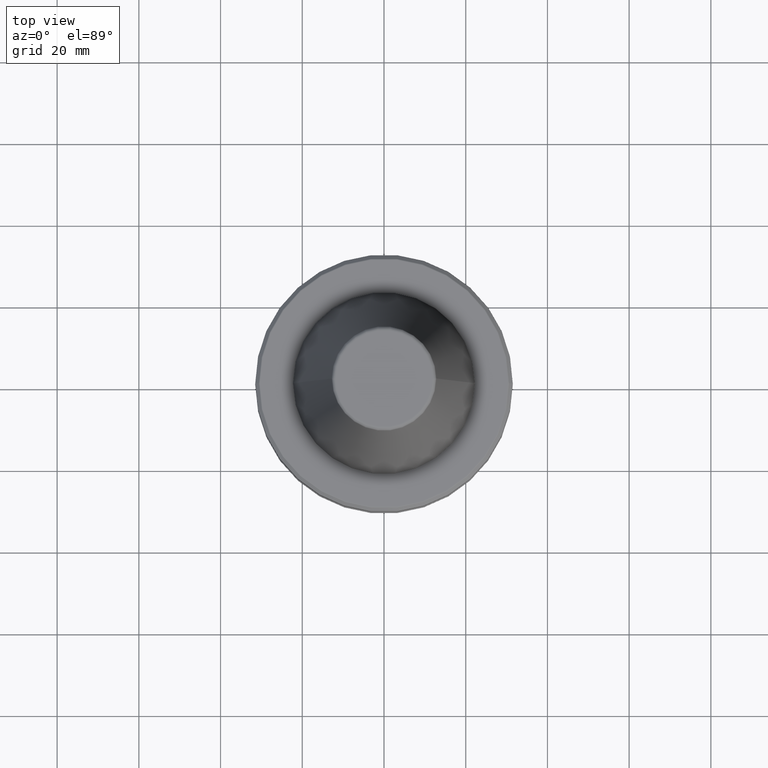
[diagram: clean part render]
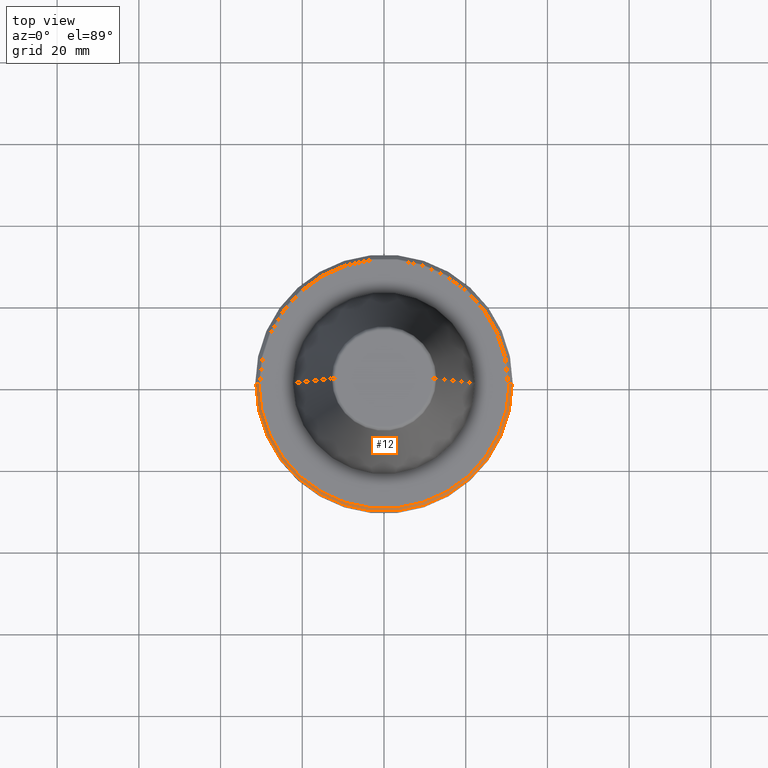
[diagram: same view with one face highlighted and labeled with its STEP entity id]
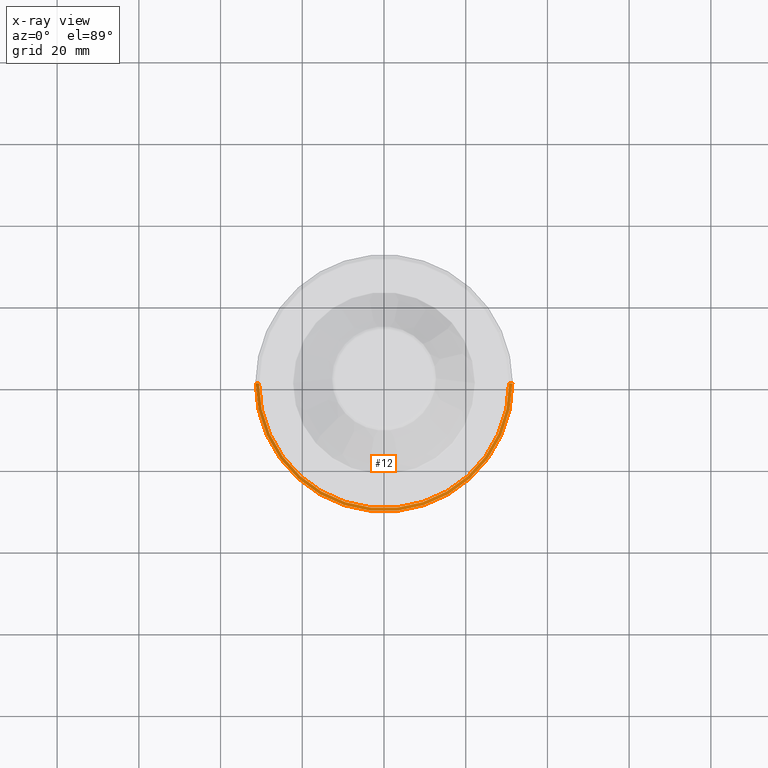
[diagram: x-ray of the same camera — body ghosted, the highlighted face saturated]
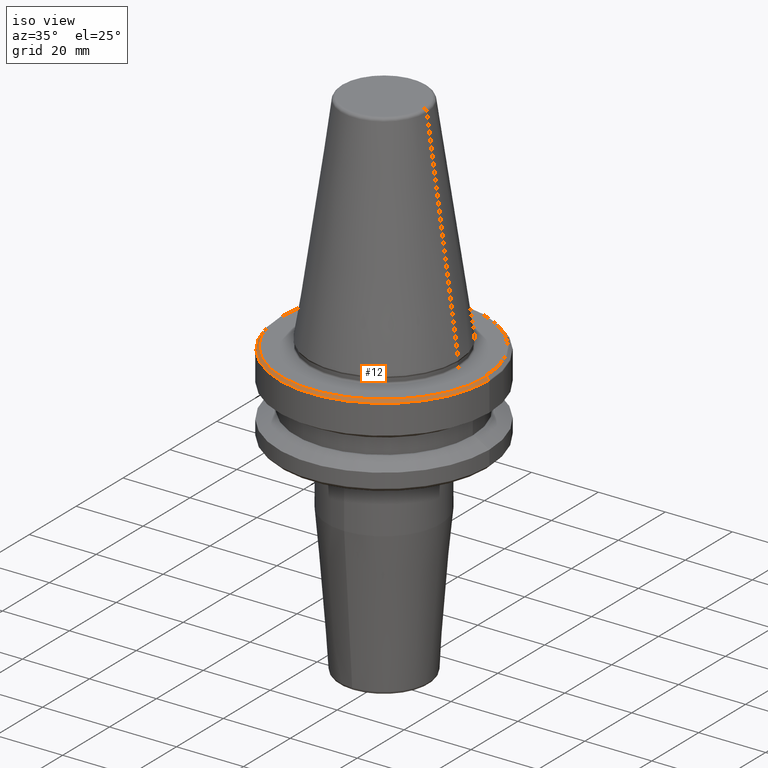
[diagram: same view with one face highlighted and labeled with its STEP entity id]
A machine part, top view. The second image highlights one B-rep face of the part: STEP entity #12.
The next image is the same camera in x-ray: the body ghosted, the highlighted face saturated — about 0% of this face is hidden behind the body in this view.
A second angle (iso view) of the same face is appended — the face is thin or edge-on in the first view.
In plain terms, the highlighted conical surface has half-angle 45 deg.
Its self-contained STEP definition (entity closure, byte-faithful):
#12 = ADVANCED_FACE ( 'NONE', ( #1205 ), #393, .T. ) ;
#42 = AXIS2_PLACEMENT_3D ( 'NONE', #622, #57, #809 ) ;
#57 = DIRECTION ( 'NONE',  ( -0.0000000000000000000, -0.0000000000000000000, 1.000000000000000000 ) ) ;
#59 = LINE ( 'NONE', #913, #1032 ) ;
#82 = AXIS2_PLACEMENT_3D ( 'NONE', #542, #1228, #245 ) ;
#98 = EDGE_CURVE ( 'NONE', #491, #767, #819, .T. ) ;
#165 = AXIS2_PLACEMENT_3D ( 'NONE', #864, #1077, #762 ) ;
#177 = ORIENTED_EDGE ( 'NONE', *, *, #724, .F. ) ;
#198 = DIRECTION ( 'NONE',  ( -0.7071067811865474600, 0.0000000000000000000, -0.7071067811865475700 ) ) ;
#222 = VECTOR ( 'NONE', #198, 1000.000000000000000 ) ;
#231 = CARTESIAN_POINT ( 'NONE',  ( 30.61715728752538400, 3.796405077356795100E-015, -2.117157287525386800 ) ) ;
#245 = DIRECTION ( 'NONE',  ( 1.000000000000000000, 0.0000000000000000000, 0.0000000000000000000 ) ) ;
#248 = LINE ( 'NONE', #322, #222 ) ;
#322 = CARTESIAN_POINT ( 'NONE',  ( -30.61715728752538400, 0.0000000000000000000, -2.117157287525386800 ) ) ;
#359 = ORIENTED_EDGE ( 'NONE', *, *, #715, .T. ) ;
#393 = CONICAL_SURFACE ( 'NONE', #165, 30.61715728752538400, 0.7853981633974482800 ) ;
#443 = DIRECTION ( 'NONE',  ( 0.7071067811865474600, 8.659560562354931600E-017, -0.7071067811865475700 ) ) ;
#491 = VERTEX_POINT ( 'NONE', #583 ) ;
#511 = ORIENTED_EDGE ( 'NONE', *, *, #1029, .T. ) ;
#542 = CARTESIAN_POINT ( 'NONE',  ( 0.0000000000000000000, 0.0000000000000000000, -2.117157287525386800 ) ) ;
#583 = CARTESIAN_POINT ( 'NONE',  ( -30.61715728752538400, 0.0000000000000000000, -2.117157287525386800 ) ) ;
#622 = CARTESIAN_POINT ( 'NONE',  ( 0.0000000000000000000, 0.0000000000000000000, -2.882842712474617700 ) ) ;
#655 = VERTEX_POINT ( 'NONE', #753 ) ;
#715 = EDGE_CURVE ( 'NONE', #1179, #655, #1098, .T. ) ;
#724 = EDGE_CURVE ( 'NONE', #767, #655, #59, .T. ) ;
#753 = CARTESIAN_POINT ( 'NONE',  ( 31.38284271247461600, 3.843289787597687600E-015, -2.882842712474617700 ) ) ;
#762 = DIRECTION ( 'NONE',  ( -1.000000000000000000, 0.0000000000000000000, 0.0000000000000000000 ) ) ;
#767 = VERTEX_POINT ( 'NONE', #231 ) ;
#785 = ORIENTED_EDGE ( 'NONE', *, *, #98, .F. ) ;
#809 = DIRECTION ( 'NONE',  ( 1.000000000000000000, 0.0000000000000000000, 0.0000000000000000000 ) ) ;
#819 = CIRCLE ( 'NONE', #82, 30.61715728752538400 ) ;
#864 = CARTESIAN_POINT ( 'NONE',  ( 0.0000000000000000000, 0.0000000000000000000, -2.117157287525386800 ) ) ;
#913 = CARTESIAN_POINT ( 'NONE',  ( 30.61715728752538400, 3.749520367115901800E-015, -2.117157287525386800 ) ) ;
#1029 = EDGE_CURVE ( 'NONE', #491, #1179, #248, .T. ) ;
#1032 = VECTOR ( 'NONE', #443, 1000.000000000000000 ) ;
#1077 = DIRECTION ( 'NONE',  ( 0.0000000000000000000, 0.0000000000000000000, -1.000000000000000000 ) ) ;
#1098 = CIRCLE ( 'NONE', #42, 31.38284271247461600 ) ;
#1160 = CARTESIAN_POINT ( 'NONE',  ( -31.38284271247461600, 0.0000000000000000000, -2.882842712474617700 ) ) ;
#1179 = VERTEX_POINT ( 'NONE', #1160 ) ;
#1205 = FACE_OUTER_BOUND ( 'NONE', #1211, .T. ) ;
#1211 = EDGE_LOOP ( 'NONE', ( #177, #785, #511, #359 ) ) ;
#1228 = DIRECTION ( 'NONE',  ( -0.0000000000000000000, -0.0000000000000000000, 1.000000000000000000 ) ) ;